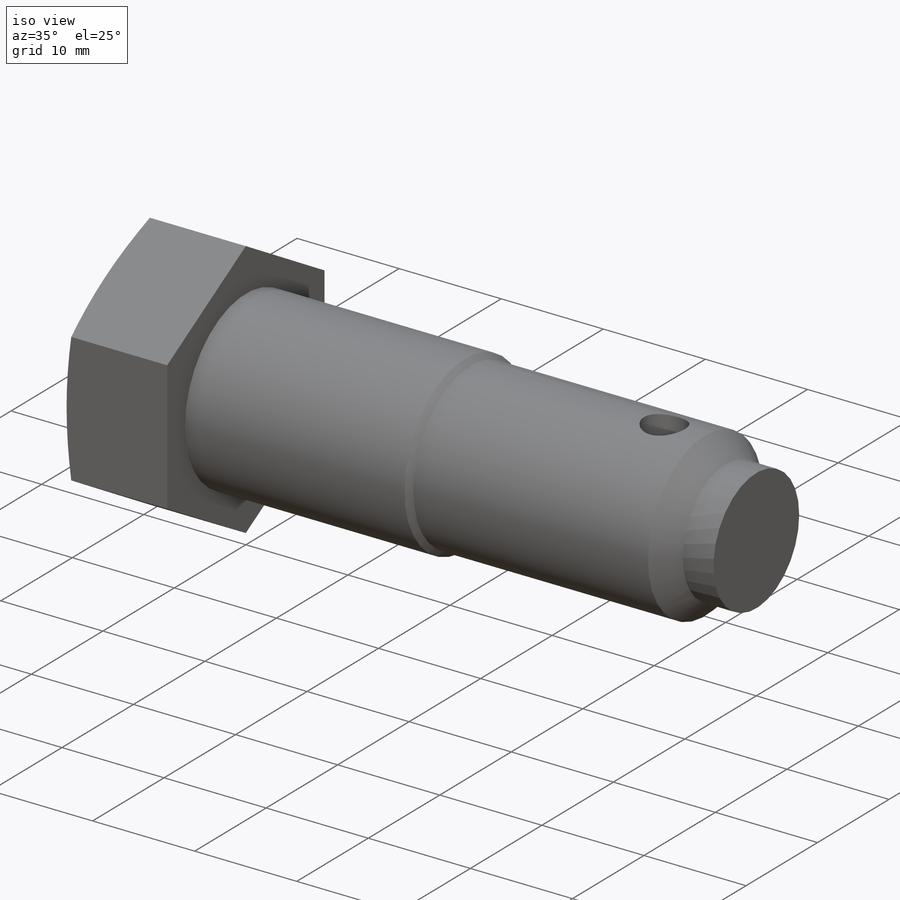
[diagram: iso view]
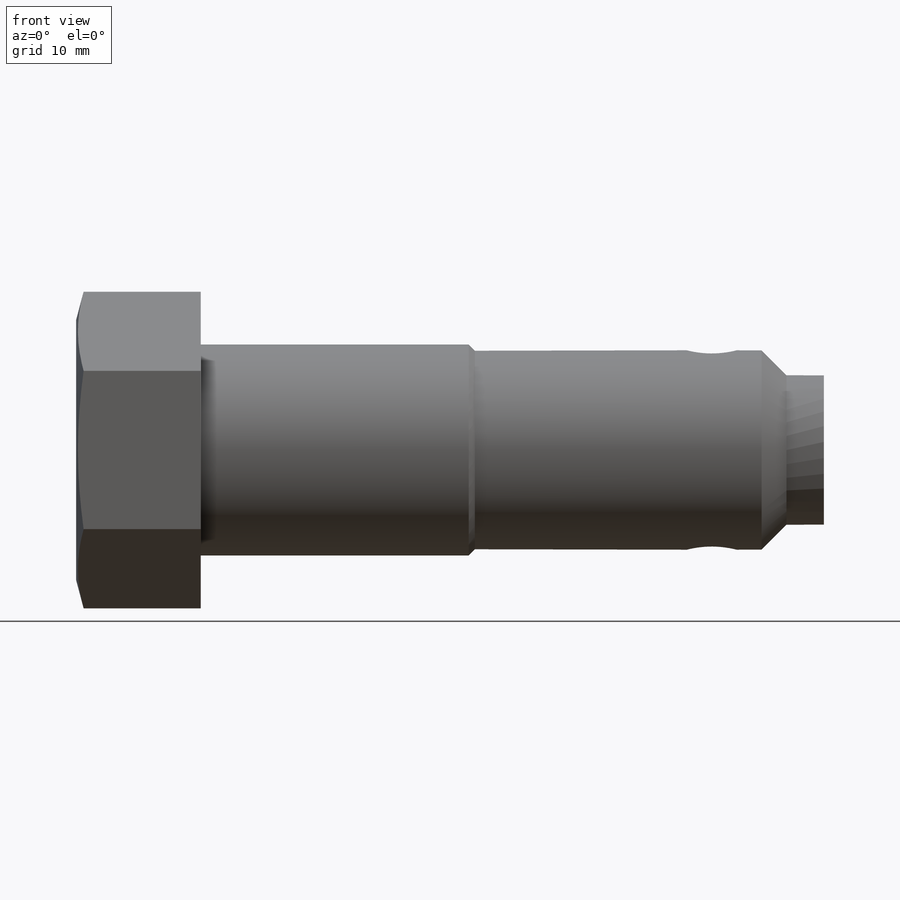
[diagram: front view]
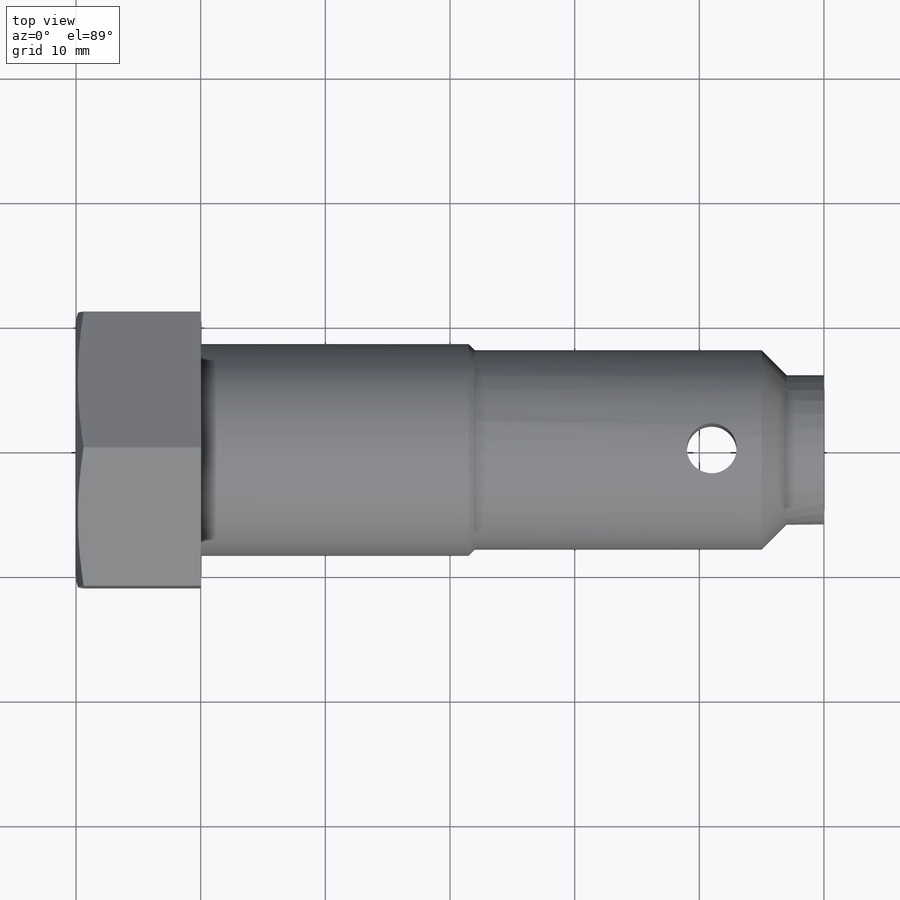
[diagram: top view]
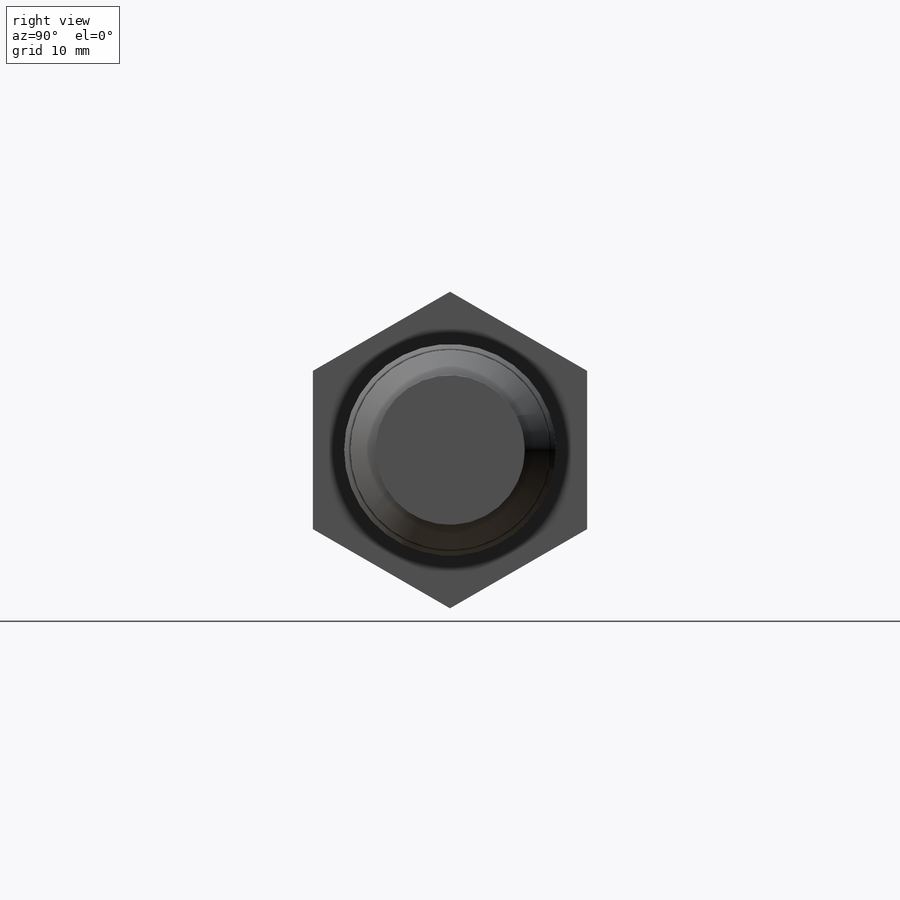
[diagram: right view]
SOLIDWORKS PART (.sldprt)
format: sldprt  version: not decoded by parser v0  size: 324,096 bytes
history: native  units: mm
features: cut_revolve x10, sketch x4, plane x3, revolve x3, cut_extrude x3, material x1, thread x1, extrude x1 (+11 scaffold rows collapsed; 1 parser-record rows omitted)
feature tree (38):
  scaffold x11  (default folders/planes/origin — collapsed)
  material  "Материал <не указан>"
  plane  "Плоскость1"
  plane  "Плоскость2"
  plane  "Плоскость3"
  parser-record x1  (decoder bookkeeping rows leaked as tree rows — omitted from the tree; the rows remain in map.json)
  sketch  "BodySke"  dims[c1.D1=~45.269355mm c1.Diameter=16.0mm c1.D2=~60.148094mm c2.D1=17.0mm c2.D3=~14.245601mm c2.D2=12.0mm c2.D4=~108.583138mm c3.D4=25.0mm c3.L2=22.0mm c3.L3=3.0mm c3.D7=~11.470983mm c4.D7=45.0deg c4.D8=~45.269355mm c5.D8=45.0deg c5.Length=50.0mm]
  revolve  "BaseBody"  [1 undecoded]
  thread  "ThreadCosmetic"  Diameter=13.797mm Minor_dia=13.797mm  [1 undecoded]
  sketch  "Ske"  dims[Width_Flats=22.0mm]
  extrude  "BaseHead"  Depth=10mm Head_HT=10mm
  sketch  "Ske1"  dims[D1=20.9mm D2=~1.73384mm Head_ch_ang=15.0deg]
  cut_revolve  "HeadFillet"  Angle=360deg
  sketch  "Ske2"  dims[D1=~1.862569mm D3=4.0mm LContr=41.0mm]
  cut_extrude  "Hole"  [1 undecoded]
  cut_revolve  "#swsysprm#"  [1 undecoded]
  revolve  "PTricksAttrrInst5"  [1 undecoded]
  cut_revolve  "PTricksEqu"  [1 undecoded]
  cut_revolve  "PTricksFreeParameters"  [1 undecoded]
  cut_extrude  "TesisParameTricks5"  [1 undecoded]
  cut_revolve  "PTricksEqu"  [1 undecoded]
  cut_revolve  "PTricksFreeParameters"  [1 undecoded]
  revolve  "SolidworksEditDefinition"  [1 undecoded]
  cut_revolve  "PartNumberID"  [1 undecoded]
  cut_revolve  "ConfigurationName"  CopiedFlag=0  [1 undecoded]
  cut_extrude  "SolidworksEditDefinition"  [1 undecoded]
  cut_revolve  "PartNumberID"  [1 undecoded]
  cut_revolve  "ConfigurationName"  CopiedFlag=0  [1 undecoded]
decode coverage: 9 of 22 modeling features carry decoded parameters
note: ~ marks probable driven/reference dimensions
note: 16 parameter values undecoded
summary: no parameter record found for 15 features
note: suppression state not decoded; provenance and decode notes live in map.json
